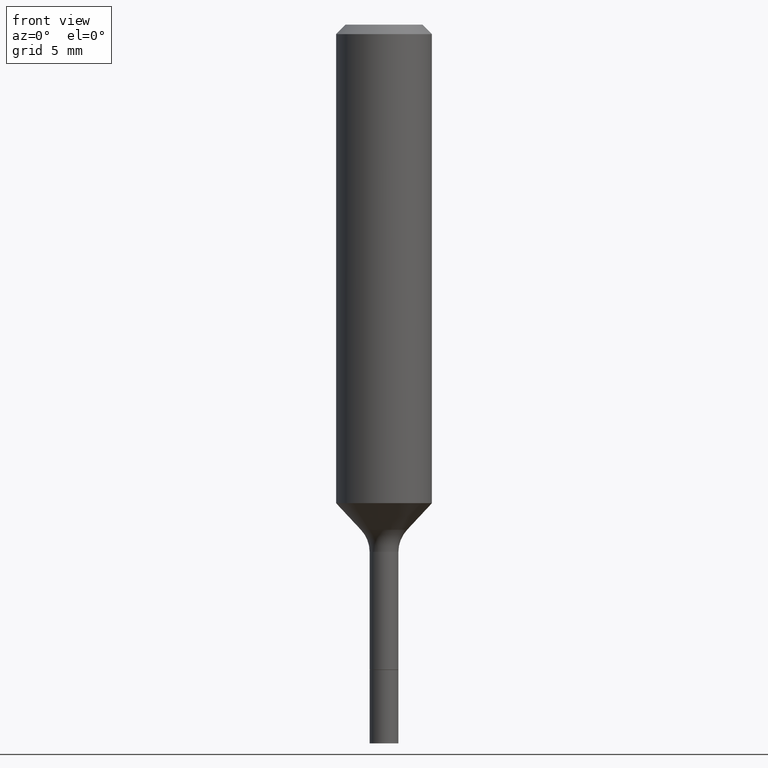
[diagram: clean part render]
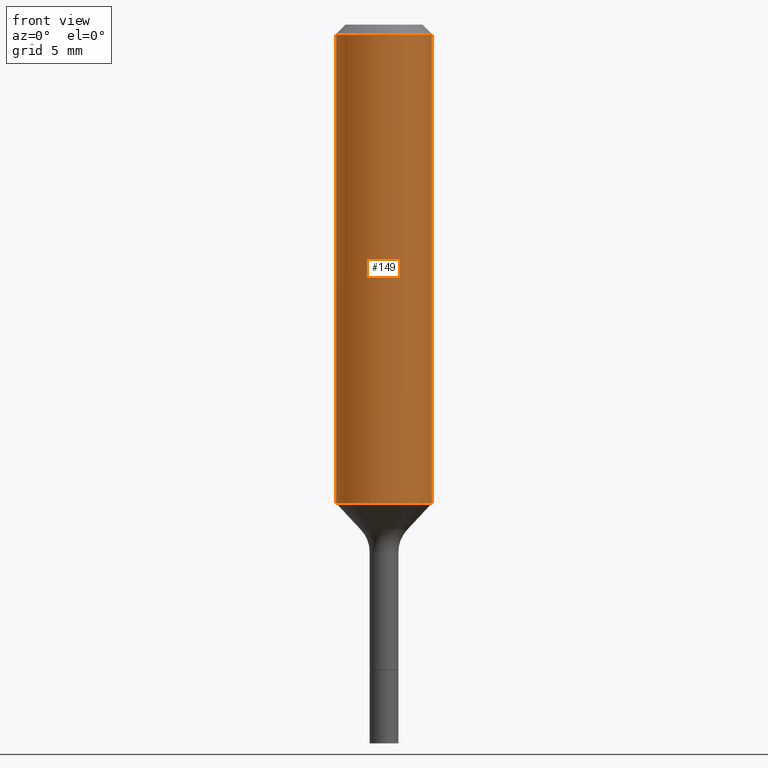
[diagram: same view with one face highlighted and labeled with its STEP entity id]
A machine part, front view. The second image highlights one B-rep face of the part: STEP entity #149.
In plain terms, the highlighted cylindrical surface (partial cylindrical patch) has radius 2.9997 mm, axis along (-0, 0, 1).
Its self-contained STEP definition (entity closure, byte-faithful):
#15 = CARTESIAN_POINT ( 'NONE',  ( 0.000000000000000000, 0.000000000000000000, 0.000000000000000000 ) ) ;
#19 = DIRECTION ( 'NONE',  ( -2.445468806185136597E-29, 3.491481338843145583E-15, 1.000000000000000000 ) ) ;
#36 = VERTEX_POINT ( 'NONE', #212 ) ;
#53 = FACE_OUTER_BOUND ( 'NONE', #440, .T. ) ;
#68 = CARTESIAN_POINT ( 'NONE',  ( 2.884567129420502109E-29, -4.118397371309408628E-15, -1.179555888067264524 ) ) ;
#70 = DIRECTION ( 'NONE',  ( -2.445468806185136597E-29, 3.491481338843145583E-15, 1.000000000000000000 ) ) ;
#71 = ORIENTED_EDGE ( 'NONE', *, *, #87, .T. ) ;
#87 = EDGE_CURVE ( 'NONE', #36, #387, #301, .T. ) ;
#138 = DIRECTION ( 'NONE',  ( -2.445468806185136597E-29, 3.491481338843145583E-15, 1.000000000000000000 ) ) ;
#142 = DIRECTION ( 'NONE',  ( 1.000000000000000000, -6.982962677686266711E-15, 0.000000000000000000 ) ) ;
#149 = ADVANCED_FACE ( 'NONE', ( #53 ), #377, .T. ) ;
#153 = CIRCLE ( 'NONE', #173, 0.1180999999999999966 ) ;
#163 = VERTEX_POINT ( 'NONE', #386 ) ;
#173 = AXIS2_PLACEMENT_3D ( 'NONE', #467, #138, #142 ) ;
#186 = CARTESIAN_POINT ( 'NONE',  ( -0.1181000000000001354, -3.279246400376729248E-15, -1.179555888067264524 ) ) ;
#212 = CARTESIAN_POINT ( 'NONE',  ( 0.1181000000000001354, -4.943085263544158468E-15, -1.179555888067264524 ) ) ;
#241 = VECTOR ( 'NONE', #352, 39.37007874015748143 ) ;
#275 = DIRECTION ( 'NONE',  ( 1.000000000000000000, -6.982962677686265133E-15, 0.000000000000000000 ) ) ;
#295 = AXIS2_PLACEMENT_3D ( 'NONE', #15, #19, #496 ) ;
#297 = DIRECTION ( 'NONE',  ( -2.445468806185136877E-29, 3.491481338843145188E-15, 1.000000000000000000 ) ) ;
#301 = LINE ( 'NONE', #461, #368 ) ;
#352 = DIRECTION ( 'NONE',  ( -2.445468806185136877E-29, 3.491481338843145188E-15, 1.000000000000000000 ) ) ;
#359 = EDGE_CURVE ( 'NONE', #462, #36, #378, .T. ) ;
#368 = VECTOR ( 'NONE', #297, 39.37007874015748143 ) ;
#377 = CYLINDRICAL_SURFACE ( 'NONE', #295, 0.1181000000000000660 ) ;
#378 = CIRCLE ( 'NONE', #466, 0.1181000000000001354 ) ;
#380 = ORIENTED_EDGE ( 'NONE', *, *, #359, .T. ) ;
#386 = CARTESIAN_POINT ( 'NONE',  ( -0.1180999999999999966, -1.261282109333762859E-15, -0.02362000000000013741 ) ) ;
#387 = VERTEX_POINT ( 'NONE', #425 ) ;
#394 = CARTESIAN_POINT ( 'NONE',  ( -0.1181000000000000660, 8.391509709326787887E-16, -5.809262341591047287E-30 ) ) ;
#425 = CARTESIAN_POINT ( 'NONE',  ( 0.1180999999999999966, -9.071566814582237199E-16, -0.02362000000000013741 ) ) ;
#427 = ORIENTED_EDGE ( 'NONE', *, *, #505, .F. ) ;
#434 = LINE ( 'NONE', #394, #241 ) ;
#437 = ORIENTED_EDGE ( 'NONE', *, *, #479, .F. ) ;
#440 = EDGE_LOOP ( 'NONE', ( #437, #380, #71, #427 ) ) ;
#461 = CARTESIAN_POINT ( 'NONE',  ( 0.1181000000000000660, -8.246878922347485584E-16, 5.758764772215003944E-30 ) ) ;
#462 = VERTEX_POINT ( 'NONE', #186 ) ;
#466 = AXIS2_PLACEMENT_3D ( 'NONE', #68, #70, #275 ) ;
#467 = CARTESIAN_POINT ( 'NONE',  ( 5.776197320209326656E-31, -8.246878922347558061E-17, -0.02362000000000013741 ) ) ;
#479 = EDGE_CURVE ( 'NONE', #462, #163, #434, .T. ) ;
#496 = DIRECTION ( 'NONE',  ( 1.000000000000000000, -6.982962677686266711E-15, 4.876176775795936353E-29 ) ) ;
#505 = EDGE_CURVE ( 'NONE', #163, #387, #153, .T. ) ;